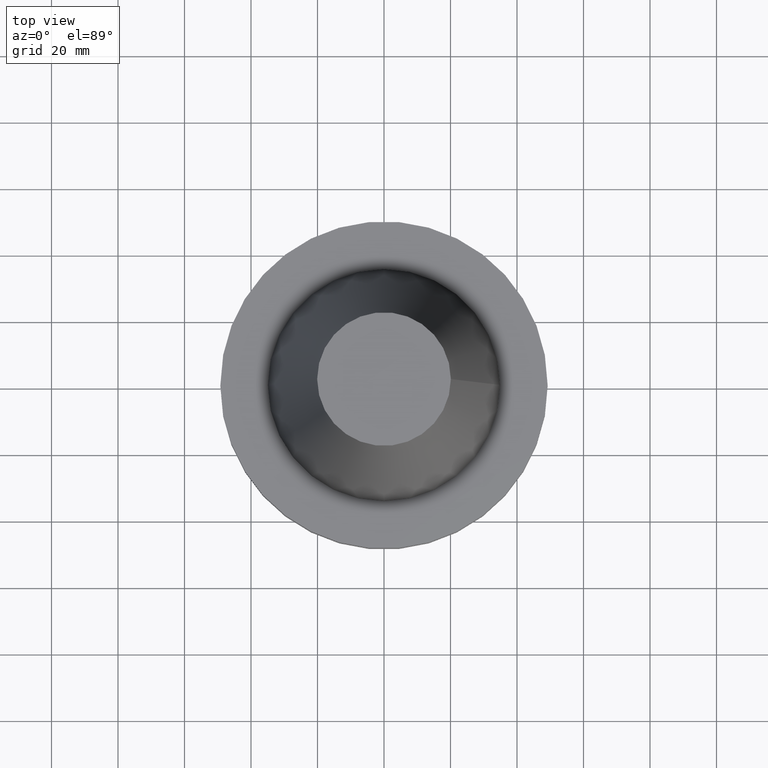
[diagram: clean part render]
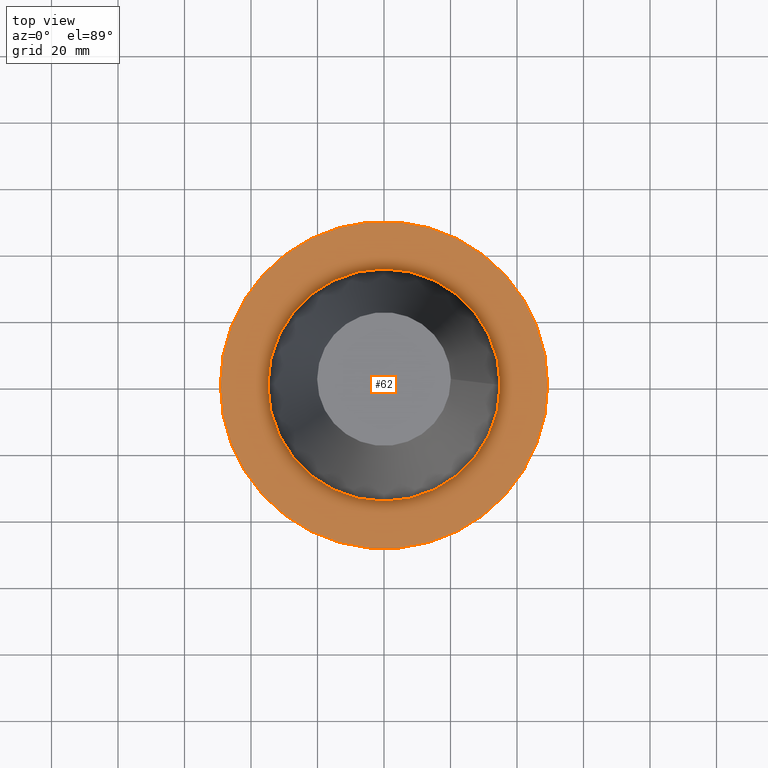
[diagram: same view with one face highlighted and labeled with its STEP entity id]
A machine part, top view. The second image highlights one B-rep face of the part: STEP entity #62.
In plain terms, the highlighted planar face has unit normal (0, 0, -1).
Its self-contained STEP definition (entity closure, byte-faithful):
#1 = DIRECTION ( 'NONE',  ( 0.000000000000000000, 0.000000000000000000, -1.000000000000000000 ) ) ;
#25 = AXIS2_PLACEMENT_3D ( 'NONE', #311, #163, #132 ) ;
#31 = PLANE ( 'NONE',  #177 ) ;
#43 = CIRCLE ( 'NONE', #176, 34.92499999999999005 ) ;
#49 = ORIENTED_EDGE ( 'NONE', *, *, #213, .F. ) ;
#62 = ADVANCED_FACE ( 'NONE', ( #183, #305 ), #31, .F. ) ;
#73 = VERTEX_POINT ( 'NONE', #166 ) ;
#85 = ORIENTED_EDGE ( 'NONE', *, *, #111, .T. ) ;
#111 = EDGE_CURVE ( 'NONE', #73, #73, #340, .T. ) ;
#125 = DIRECTION ( 'NONE',  ( -0.000000000000000000, -0.000000000000000000, 1.000000000000000000 ) ) ;
#132 = DIRECTION ( 'NONE',  ( 1.000000000000000000, 0.000000000000000000, 0.000000000000000000 ) ) ;
#145 = EDGE_LOOP ( 'NONE', ( #49 ) ) ;
#148 = EDGE_LOOP ( 'NONE', ( #85 ) ) ;
#155 = CARTESIAN_POINT ( 'NONE',  ( 0.000000000000000000, 49.21499999999999631, -1.499999999999992895 ) ) ;
#161 = DIRECTION ( 'NONE',  ( -1.000000000000000000, 0.000000000000000000, -0.000000000000000000 ) ) ;
#163 = DIRECTION ( 'NONE',  ( -0.000000000000000000, -0.000000000000000000, 1.000000000000000000 ) ) ;
#166 = CARTESIAN_POINT ( 'NONE',  ( 49.21499999999999631, 0.000000000000000000, -1.499999999999987566 ) ) ;
#172 = CARTESIAN_POINT ( 'NONE',  ( 34.92499999999999005, 0.000000000000000000, -1.499999999999987566 ) ) ;
#176 = AXIS2_PLACEMENT_3D ( 'NONE', #280, #125, #218 ) ;
#177 = AXIS2_PLACEMENT_3D ( 'NONE', #155, #1, #161 ) ;
#183 = FACE_BOUND ( 'NONE', #145, .T. ) ;
#213 = EDGE_CURVE ( 'NONE', #393, #393, #43, .T. ) ;
#218 = DIRECTION ( 'NONE',  ( 1.000000000000000000, 0.000000000000000000, 0.000000000000000000 ) ) ;
#280 = CARTESIAN_POINT ( 'NONE',  ( 0.000000000000000000, 0.000000000000000000, -1.499999999999987566 ) ) ;
#305 = FACE_OUTER_BOUND ( 'NONE', #148, .T. ) ;
#311 = CARTESIAN_POINT ( 'NONE',  ( 0.000000000000000000, 0.000000000000000000, -1.499999999999987566 ) ) ;
#340 = CIRCLE ( 'NONE', #25, 49.21499999999999631 ) ;
#393 = VERTEX_POINT ( 'NONE', #172 ) ;